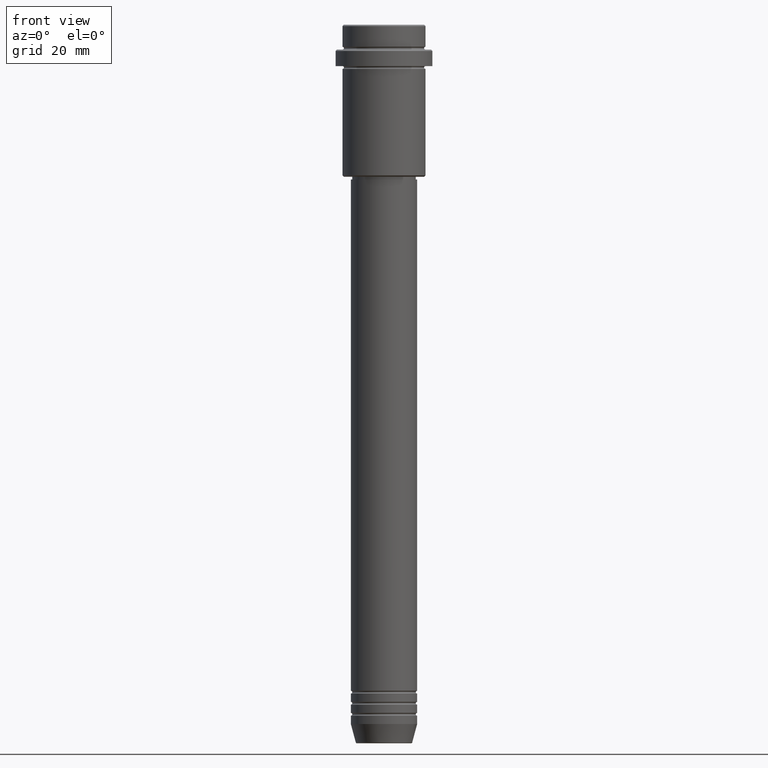
[diagram: clean part render]
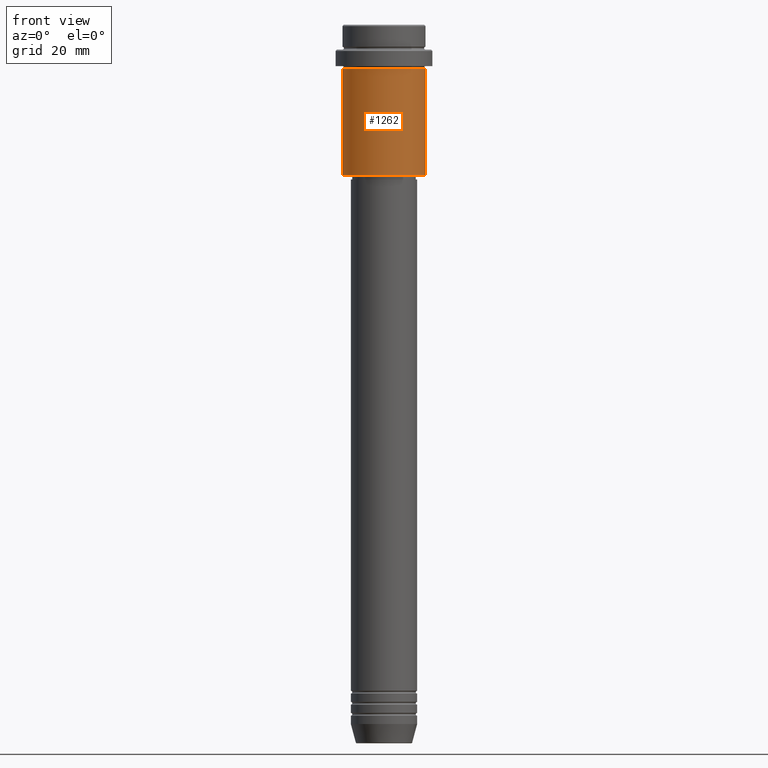
[diagram: same view with one face highlighted and labeled with its STEP entity id]
A machine part, front view. The second image highlights one B-rep face of the part: STEP entity #1262.
In plain terms, the highlighted cylindrical surface (partial cylindrical patch) has radius 15 mm, axis along (-0, -0, 1).
Its self-contained STEP definition (entity closure, byte-faithful):
#15 = AXIS2_PLACEMENT_3D ( 'NONE', #231, #1333, #28 ) ;
#28 = DIRECTION ( 'NONE',  ( 1.000000000000000000, 0.000000000000000000, 0.000000000000000000 ) ) ;
#65 = VECTOR ( 'NONE', #505, 1000.000000000000000 ) ;
#105 = DIRECTION ( 'NONE',  ( -0.000000000000000000, -0.000000000000000000, 1.000000000000000000 ) ) ;
#152 = CARTESIAN_POINT ( 'NONE',  ( 15.00000000000000178, 0.000000000000000000, -16.00000000000000000 ) ) ;
#195 = CIRCLE ( 'NONE', #1412, 15.00000000000000178 ) ;
#217 = CARTESIAN_POINT ( 'NONE',  ( 0.000000000000000000, 0.000000000000000000, -54.50000000000000711 ) ) ;
#231 = CARTESIAN_POINT ( 'NONE',  ( 0.000000000000000000, 0.000000000000000000, 0.000000000000000000 ) ) ;
#302 = DIRECTION ( 'NONE',  ( -0.000000000000000000, -0.000000000000000000, 1.000000000000000000 ) ) ;
#354 = ORIENTED_EDGE ( 'NONE', *, *, #1042, .T. ) ;
#505 = DIRECTION ( 'NONE',  ( -0.000000000000000000, -0.000000000000000000, 1.000000000000000000 ) ) ;
#524 = CARTESIAN_POINT ( 'NONE',  ( -15.00000000000000355, 1.836970198721029983E-15, -16.00000000000000000 ) ) ;
#544 = FACE_OUTER_BOUND ( 'NONE', #822, .T. ) ;
#560 = CIRCLE ( 'NONE', #886, 15.00000000000000000 ) ;
#620 = ORIENTED_EDGE ( 'NONE', *, *, #1099, .F. ) ;
#632 = CARTESIAN_POINT ( 'NONE',  ( 0.000000000000000000, 0.000000000000000000, -16.00000000000000000 ) ) ;
#639 = CARTESIAN_POINT ( 'NONE',  ( -15.00000000000000000, 1.836970198721029589E-15, 0.000000000000000000 ) ) ;
#676 = EDGE_CURVE ( 'NONE', #1289, #1090, #560, .T. ) ;
#688 = CARTESIAN_POINT ( 'NONE',  ( -15.00000000000000000, 1.836970198721029589E-15, -54.50000000000000711 ) ) ;
#822 = EDGE_LOOP ( 'NONE', ( #620, #1352, #354, #825 ) ) ;
#825 = ORIENTED_EDGE ( 'NONE', *, *, #1083, .F. ) ;
#847 = CARTESIAN_POINT ( 'NONE',  ( 15.00000000000000000, 0.000000000000000000, 0.000000000000000000 ) ) ;
#864 = DIRECTION ( 'NONE',  ( -0.000000000000000000, -0.000000000000000000, 1.000000000000000000 ) ) ;
#873 = DIRECTION ( 'NONE',  ( -1.000000000000000000, 0.000000000000000000, 0.000000000000000000 ) ) ;
#886 = AXIS2_PLACEMENT_3D ( 'NONE', #217, #105, #873 ) ;
#906 = VERTEX_POINT ( 'NONE', #152 ) ;
#971 = LINE ( 'NONE', #847, #65 ) ;
#989 = CYLINDRICAL_SURFACE ( 'NONE', #15, 15.00000000000000000 ) ;
#1030 = VERTEX_POINT ( 'NONE', #524 ) ;
#1042 = EDGE_CURVE ( 'NONE', #1090, #906, #971, .T. ) ;
#1072 = LINE ( 'NONE', #639, #1210 ) ;
#1083 = EDGE_CURVE ( 'NONE', #1030, #906, #195, .T. ) ;
#1090 = VERTEX_POINT ( 'NONE', #1290 ) ;
#1099 = EDGE_CURVE ( 'NONE', #1289, #1030, #1072, .T. ) ;
#1210 = VECTOR ( 'NONE', #302, 1000.000000000000000 ) ;
#1262 = ADVANCED_FACE ( 'NONE', ( #544 ), #989, .T. ) ;
#1280 = DIRECTION ( 'NONE',  ( 1.000000000000000000, 0.000000000000000000, 0.000000000000000000 ) ) ;
#1289 = VERTEX_POINT ( 'NONE', #688 ) ;
#1290 = CARTESIAN_POINT ( 'NONE',  ( 15.00000000000000000, 0.000000000000000000, -54.50000000000000711 ) ) ;
#1333 = DIRECTION ( 'NONE',  ( -0.000000000000000000, -0.000000000000000000, 1.000000000000000000 ) ) ;
#1352 = ORIENTED_EDGE ( 'NONE', *, *, #676, .T. ) ;
#1412 = AXIS2_PLACEMENT_3D ( 'NONE', #632, #864, #1280 ) ;